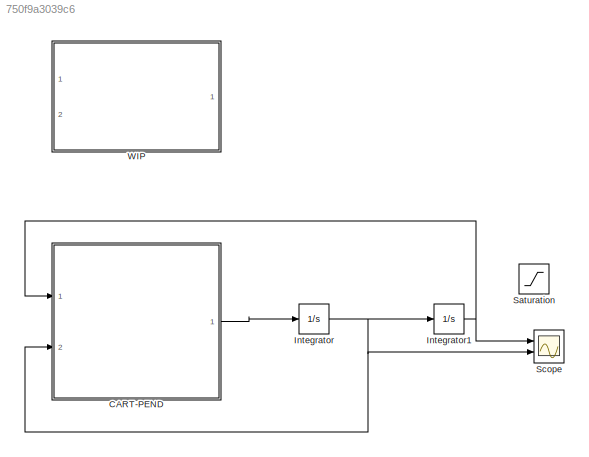
MODEL slx_750f9a3039c6
KIND model
CONFIG AbsTol = auto
CONFIG EnableMultiTasking = off
CONFIG FixedStep = auto
CONFIG MaxStep = 0.002
CONFIG MinStep = auto
CONFIG RelTol = 1e-3
CONFIG SampleTimeConstraint = Unconstrained
CONFIG SolverName = VariableStepAuto
CONFIG StartTime = 0.0
CONFIG StopTime = 10.0
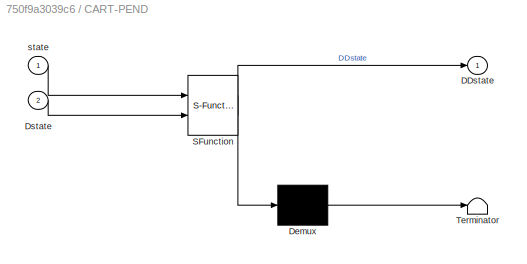
BLOCK [SubSystem] CART-PEND
  ErrorFcn = Stateflow.Translate.translate
  PermitHierarchicalResolution = ExplicitOnly
  Ports = [2, 1]
  RequestExecContextInheritance = off
  SFBlockType = MATLAB Function
  TreatAsAtomicUnit = on
BLOCK [Demux] CART-PEND/ Demux 
  Outputs = 1
  Ports = [1, 1]
BLOCK [S-Function] CART-PEND/ SFunction 
  EnableBusSupport = on
  FunctionName = sf_sfun
  Parameters = g,l,mc,mp
  PortCounts = [2 2]
  Ports = [2, 2]
  SFcnIsStateOwnerBlock = off
  SFunctionDeploymentMode = off
  Tag = Stateflow S-Function 1
BLOCK [Terminator] CART-PEND/ Terminator 
BLOCK [Outport] CART-PEND/DDstate
BLOCK [Inport] CART-PEND/Dstate
  Port = 2
BLOCK [Inport] CART-PEND/state
BLOCK [Integrator] Integrator
  InitialCondition = [0;0]
  Ports = [1, 1]
BLOCK [Integrator] Integrator1
  InitialCondition = [0;0.001]
  Ports = [1, 1]
BLOCK [Saturate] Saturation
  Commented = on
  LowerLimit = [-400;-pi/2]
  UpperLimit = [400;pi/2]
BLOCK [Scope] Scope
  Floating = off
  NumInputPorts = 2
  Ports = [2]
  ScopeSpecificationString = Simulink.scopes.TimeScopeBlockCfg('CurrentConfiguration', extmgr.ConfigurationSet(extmgr.Configuration('Core','General UI',true),extmgr.Configuration('Core','Source UI',true),extmgr.Configuration('Sources','WiredSimulink',true),extmgr.Configuration('Visuals','Time Domain',true,'SerializedDisplays',{struct('MinYLimReal','-19.8958','MaxYLimReal','179.06222','YLabelReal','','MinYLimMag','0.00000','Ma...<+2128ch>
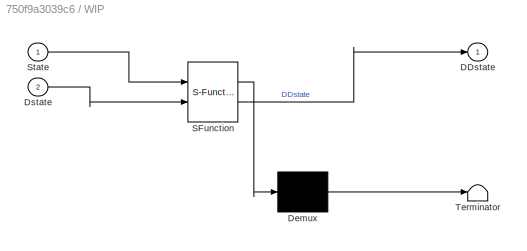
BLOCK [SubSystem] WIP
  Commented = on
  ErrorFcn = Stateflow.Translate.translate
  PermitHierarchicalResolution = ExplicitOnly
  Ports = [2, 1]
  RequestExecContextInheritance = off
  SFBlockType = MATLAB Function
  TreatAsAtomicUnit = on
BLOCK [Demux] WIP/ Demux 
  Outputs = 1
  Ports = [1, 1]
BLOCK [S-Function] WIP/ SFunction 
  EnableBusSupport = on
  FunctionName = sf_sfun
  Parameters = Ib,Iw,g,l,mb
  PortCounts = [2 2]
  Ports = [2, 2]
  SFcnIsStateOwnerBlock = off
  SFunctionDeploymentMode = off
  Tag = Stateflow S-Function 2
BLOCK [Terminator] WIP/ Terminator 
BLOCK [Outport] WIP/DDstate
BLOCK [Inport] WIP/Dstate
  Port = 2
BLOCK [Inport] WIP/State
LINE CART-PEND:1 -> Integrator:1
NET Integrator1:1 -> CART-PEND:1, Scope:1
NET Integrator:1 -> CART-PEND:2, Integrator1:1, Scope:2
note: NET lines group one-source signal fan-out (src -> all destinations, sorted); 1:1 wires keep LINE
CHART CART-PEND states=1 transitions=1
  STATE_LABEL 'eML_blk_kernel()'
  STATE_LABEL 'SCRIPT:\nfunction DDstate = fcn(state,Dstate,g, mp, l, mc)\ntheta=state(2);\nDtheta=Dstate(2);\nF=[-31.6228,-76.4152,784.9593,401.2544]*[state;Dstate];\n\nDDx= (- l*mp*sin(theta)*Dtheta^2 + F + g*mp*cos(theta)*sin(theta))/(- mp*cos(theta)^2 + mc + mp);\nDDtheta= (- l*mp*cos(theta)*sin(theta)*Dtheta^2 + F*cos(theta) + g*mc*sin(theta) + g*mp*sin(theta))/(l*(- mp*cos(theta)^2 + mc + mp));\nDDstate = [DDx;DDt...<+13ch>'
CHART WIP states=1 transitions=1
  STATE_LABEL 'eML_blk_kernel()'
  STATE_LABEL 'SCRIPT:\nfunction DDstate = fcn(State,Dstate,g, Iw, mb, l, Ib)\ntheta=State(2);\nDDpsi=1/Iw*(-mb*g*cos(theta)*l);\nDDtheta=1/Ib*DDpsi;\nDDstate = [DDpsi;DDtheta];\n'
CHART  states=0 transitions=0
CHART  states=0 transitions=0
